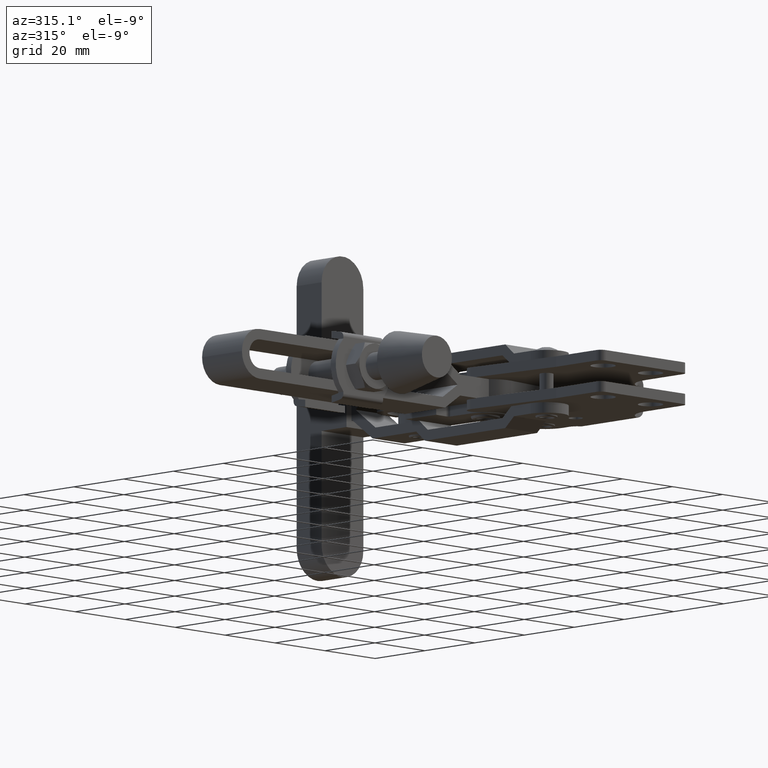
[diagram: clean part render]
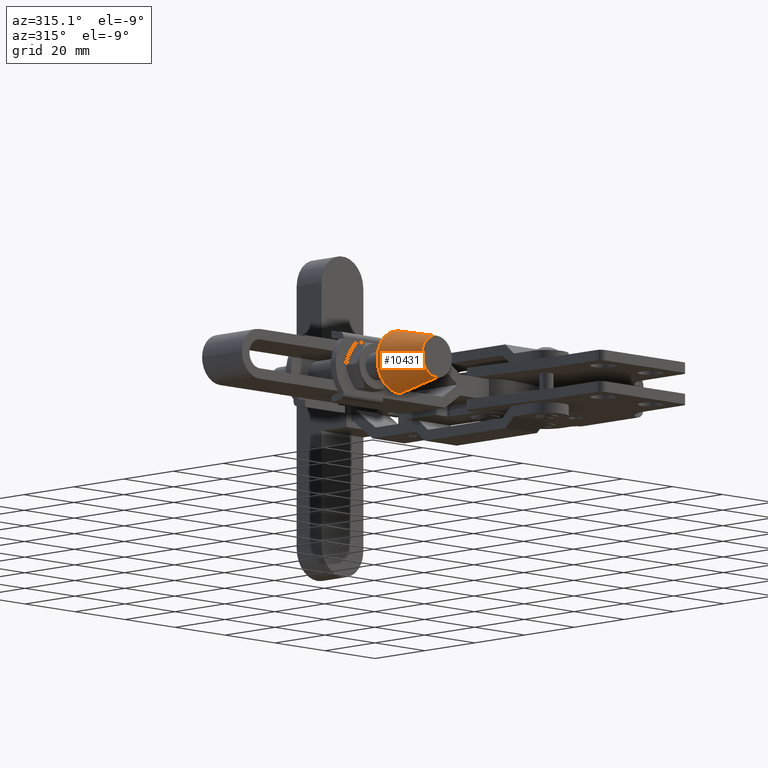
[diagram: same view with one face highlighted and labeled with its STEP entity id]
A machine part, auxiliary view. The second image highlights one B-rep face of the part: STEP entity #10431.
In plain terms, the highlighted conical surface has half-angle 11.31 deg.
Its self-contained STEP definition (entity closure, byte-faithful):
#138 = ORIENTED_EDGE ( 'NONE', *, *, #4982, .F. ) ;
#210 = EDGE_CURVE ( 'NONE', #6836, #8289, #4829, .T. ) ;
#312 = VERTEX_POINT ( 'NONE', #847 ) ;
#428 = VECTOR ( 'NONE', #10331, 1000.000000000000000 ) ;
#569 = EDGE_LOOP ( 'NONE', ( #9985, #138, #1916, #6008 ) ) ;
#847 = CARTESIAN_POINT ( 'NONE',  ( -94.37569315383768800, 0.2999999999995207600, -5.999999999999967100 ) ) ;
#951 = CIRCLE ( 'NONE', #9154, 6.000000000000000000 ) ;
#1146 = AXIS2_PLACEMENT_3D ( 'NONE', #8294, #10967, #2003 ) ;
#1201 = AXIS2_PLACEMENT_3D ( 'NONE', #10241, #8441, #6612 ) ;
#1377 = CARTESIAN_POINT ( 'NONE',  ( -94.37569315383768800, 0.2999999999995207600, 6.000000000000032900 ) ) ;
#1886 = CONICAL_SURFACE ( 'NONE', #1146, 6.000000000000000000, 0.1973955598498806600 ) ;
#1916 = ORIENTED_EDGE ( 'NONE', *, *, #7233, .T. ) ;
#2003 = DIRECTION ( 'NONE',  ( 0.0000000000000000000, 0.0000000000000000000, 1.000000000000000000 ) ) ;
#2842 = CARTESIAN_POINT ( 'NONE',  ( -94.37569315383768800, 0.2999999999995207600, 3.295974604355933500E-014 ) ) ;
#3115 = LINE ( 'NONE', #9410, #428 ) ;
#3549 = LINE ( 'NONE', #6265, #8089 ) ;
#3747 = DIRECTION ( 'NONE',  ( 0.0000000000000000000, 0.0000000000000000000, -1.000000000000000000 ) ) ;
#4829 = CIRCLE ( 'NONE', #1201, 9.000000000000000000 ) ;
#4982 = EDGE_CURVE ( 'NONE', #6818, #312, #951, .T. ) ;
#5400 = FACE_OUTER_BOUND ( 'NONE', #569, .T. ) ;
#6008 = ORIENTED_EDGE ( 'NONE', *, *, #210, .T. ) ;
#6265 = CARTESIAN_POINT ( 'NONE',  ( -94.37569315383768800, 0.2999999999995207600, -5.999999999999967100 ) ) ;
#6612 = DIRECTION ( 'NONE',  ( 0.0000000000000000000, 0.0000000000000000000, -1.000000000000000000 ) ) ;
#6818 = VERTEX_POINT ( 'NONE', #1377 ) ;
#6836 = VERTEX_POINT ( 'NONE', #7755 ) ;
#7062 = EDGE_CURVE ( 'NONE', #312, #8289, #3549, .T. ) ;
#7233 = EDGE_CURVE ( 'NONE', #6818, #6836, #3115, .T. ) ;
#7755 = CARTESIAN_POINT ( 'NONE',  ( -94.37569315383768800, 15.29999999999952100, 9.000000000000032000 ) ) ;
#8089 = VECTOR ( 'NONE', #11730, 1000.000000000000000 ) ;
#8289 = VERTEX_POINT ( 'NONE', #11436 ) ;
#8294 = CARTESIAN_POINT ( 'NONE',  ( -94.37569315383768800, 0.2999999999995207600, 3.295974604355933500E-014 ) ) ;
#8441 = DIRECTION ( 'NONE',  ( -0.0000000000000000000, -1.000000000000000000, -0.0000000000000000000 ) ) ;
#9154 = AXIS2_PLACEMENT_3D ( 'NONE', #2842, #9195, #3747 ) ;
#9195 = DIRECTION ( 'NONE',  ( -0.0000000000000000000, -1.000000000000000000, -0.0000000000000000000 ) ) ;
#9410 = CARTESIAN_POINT ( 'NONE',  ( -94.37569315383768800, 0.2999999999995207600, 6.000000000000032900 ) ) ;
#9985 = ORIENTED_EDGE ( 'NONE', *, *, #7062, .F. ) ;
#10241 = CARTESIAN_POINT ( 'NONE',  ( -94.37569315383768800, 15.29999999999952100, 3.295974604355933500E-014 ) ) ;
#10331 = DIRECTION ( 'NONE',  ( 0.0000000000000000000, 0.9805806756909202200, 0.1961161351381839900 ) ) ;
#10431 = ADVANCED_FACE ( 'NONE', ( #5400 ), #1886, .T. ) ;
#10967 = DIRECTION ( 'NONE',  ( 0.0000000000000000000, 1.000000000000000000, 0.0000000000000000000 ) ) ;
#11436 = CARTESIAN_POINT ( 'NONE',  ( -94.37569315383768800, 15.29999999999952100, -8.999999999999966200 ) ) ;
#11730 = DIRECTION ( 'NONE',  ( 2.401729971581267900E-017, 0.9805806756909202200, -0.1961161351381839900 ) ) ;